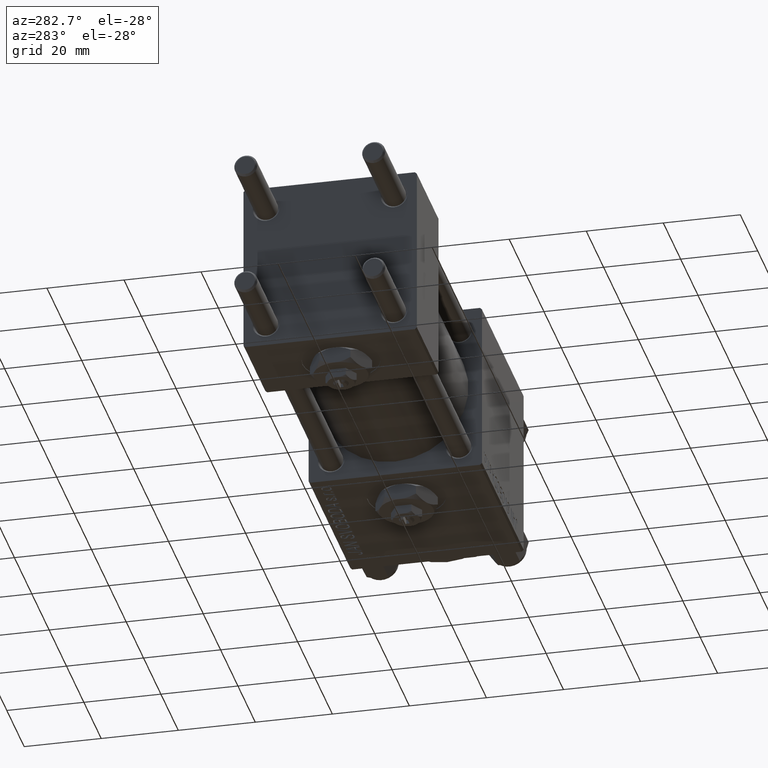
[diagram: clean part render]
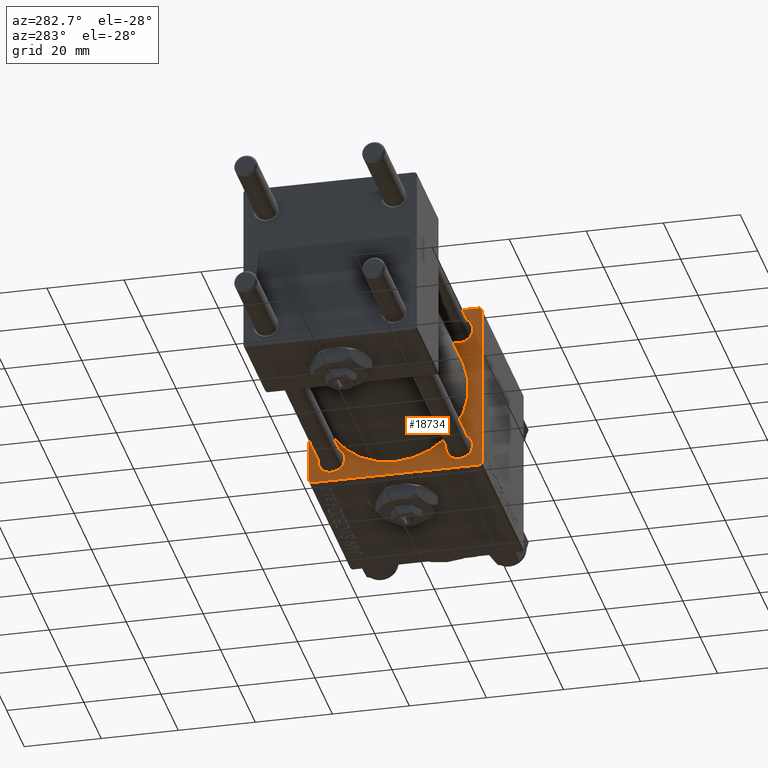
[diagram: same view with one face highlighted and labeled with its STEP entity id]
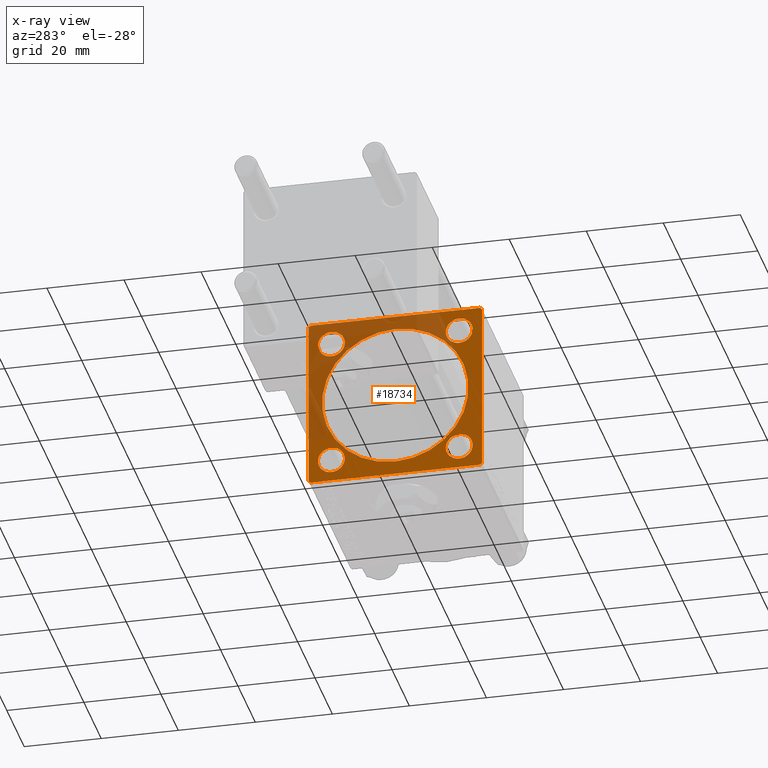
[diagram: x-ray of the same camera — body ghosted, the highlighted face saturated]
A machine part, auxiliary view. The second image highlights one B-rep face of the part: STEP entity #18734.
The next image is the same camera in x-ray: the body ghosted, the highlighted face saturated — about 40% of this face is hidden behind the body in this view.
In plain terms, the highlighted planar face has unit normal (-1, 0, 0).
Its self-contained STEP definition (entity closure, byte-faithful):
#71 = VERTEX_POINT ( 'NONE', #29011 ) ;
#168 = DIRECTION ( 'NONE',  ( 1.000000000000000000, -0.000000000000000000, 0.000000000000000000 ) ) ;
#236 = CARTESIAN_POINT ( 'NONE',  ( 75.00000000000001421, -21.99999999999998224, -22.50000000000000000 ) ) ;
#375 = CARTESIAN_POINT ( 'NONE',  ( 75.00000000000001421, -16.59999999999999076, -16.60000000000000853 ) ) ;
#728 = EDGE_CURVE ( 'NONE', #11742, #42389, #50954, .T. ) ;
#881 = DIRECTION ( 'NONE',  ( -0.000000000000000000, -0.7071067811865573427, -0.7071067811865378028 ) ) ;
#989 = AXIS2_PLACEMENT_3D ( 'NONE', #37547, #1488, #17546 ) ;
#1015 = EDGE_CURVE ( 'NONE', #15150, #28205, #36936, .T. ) ;
#1216 = ORIENTED_EDGE ( 'NONE', *, *, #1412, .T. ) ;
#1330 = CARTESIAN_POINT ( 'NONE',  ( 75.00000000000001421, 22.50000000000000355, 22.50000000000000355 ) ) ;
#1363 = CARTESIAN_POINT ( 'NONE',  ( 75.00000000000001421, 22.50000000000000355, -22.49999999999999645 ) ) ;
#1411 = VERTEX_POINT ( 'NONE', #24749 ) ;
#1412 = EDGE_CURVE ( 'NONE', #10929, #15150, #20812, .T. ) ;
#1488 = DIRECTION ( 'NONE',  ( 1.000000000000000000, -0.000000000000000000, 0.000000000000000000 ) ) ;
#2500 = FACE_BOUND ( 'NONE', #37151, .T. ) ;
#2888 = DIRECTION ( 'NONE',  ( 1.000000000000000000, -0.000000000000000000, 0.000000000000000000 ) ) ;
#2963 = DIRECTION ( 'NONE',  ( 1.000000000000000000, 0.000000000000000000, 0.000000000000000000 ) ) ;
#3192 = VECTOR ( 'NONE', #21524, 1000.000000000000000 ) ;
#3258 = DIRECTION ( 'NONE',  ( 1.000000000000000000, -0.000000000000000000, 0.000000000000000000 ) ) ;
#4026 = AXIS2_PLACEMENT_3D ( 'NONE', #38520, #2963, #30348 ) ;
#4302 = AXIS2_PLACEMENT_3D ( 'NONE', #375, #3258, #11676 ) ;
#4342 = LINE ( 'NONE', #32766, #48856 ) ;
#5226 = EDGE_CURVE ( 'NONE', #43988, #10929, #26252, .T. ) ;
#5308 = VECTOR ( 'NONE', #29471, 1000.000000000000000 ) ;
#6286 = CARTESIAN_POINT ( 'NONE',  ( 75.00000000000001421, 2.326828918379970970E-15, -19.00000000000000000 ) ) ;
#6453 = DIRECTION ( 'NONE',  ( -0.000000000000000000, 0.000000000000000000, 1.000000000000000000 ) ) ;
#6685 = ORIENTED_EDGE ( 'NONE', *, *, #43332, .T. ) ;
#6700 = CARTESIAN_POINT ( 'NONE',  ( 75.00000000000001421, 16.59999999999999787, 20.10000000000001918 ) ) ;
#7053 = VERTEX_POINT ( 'NONE', #20317 ) ;
#7239 = LINE ( 'NONE', #23269, #51776 ) ;
#8290 = DIRECTION ( 'NONE',  ( 0.000000000000000000, -0.7071067811865425767, 0.7071067811865525687 ) ) ;
#8377 = CARTESIAN_POINT ( 'NONE',  ( 75.00000000000001421, 0.000000000000000000, 19.00000000000000000 ) ) ;
#8564 = EDGE_CURVE ( 'NONE', #49235, #20398, #32494, .T. ) ;
#8977 = DIRECTION ( 'NONE',  ( 0.000000000000000000, 0.000000000000000000, -1.000000000000000000 ) ) ;
#9888 = CIRCLE ( 'NONE', #4026, 19.00000000000000000 ) ;
#9978 = DIRECTION ( 'NONE',  ( 1.000000000000000000, -0.000000000000000000, 0.000000000000000000 ) ) ;
#10160 = DIRECTION ( 'NONE',  ( 0.000000000000000000, 0.000000000000000000, -1.000000000000000000 ) ) ;
#10761 = CARTESIAN_POINT ( 'NONE',  ( 75.00000000000001421, 16.59999999999999787, -13.09999999999997300 ) ) ;
#10929 = VERTEX_POINT ( 'NONE', #12081 ) ;
#11676 = DIRECTION ( 'NONE',  ( 0.000000000000000000, 0.000000000000000000, 1.000000000000000000 ) ) ;
#11742 = VERTEX_POINT ( 'NONE', #43940 ) ;
#11996 = EDGE_CURVE ( 'NONE', #48050, #7053, #44194, .T. ) ;
#12081 = CARTESIAN_POINT ( 'NONE',  ( 75.00000000000001421, 22.50000000000000355, 21.99999999999997513 ) ) ;
#13043 = EDGE_CURVE ( 'NONE', #42769, #20398, #7239, .T. ) ;
#13663 = DIRECTION ( 'NONE',  ( 0.000000000000000000, 0.000000000000000000, 1.000000000000000000 ) ) ;
#13722 = LINE ( 'NONE', #1363, #51885 ) ;
#14724 = DIRECTION ( 'NONE',  ( 0.000000000000000000, 0.000000000000000000, 1.000000000000000000 ) ) ;
#14849 = FACE_BOUND ( 'NONE', #47316, .T. ) ;
#14940 = DIRECTION ( 'NONE',  ( 1.000000000000000000, 0.000000000000000000, 0.000000000000000000 ) ) ;
#15150 = VERTEX_POINT ( 'NONE', #32757 ) ;
#15247 = ORIENTED_EDGE ( 'NONE', *, *, #1015, .T. ) ;
#15385 = CARTESIAN_POINT ( 'NONE',  ( 75.00000000000001421, 21.99999999999996092, 22.50000000000000355 ) ) ;
#16104 = ORIENTED_EDGE ( 'NONE', *, *, #21074, .T. ) ;
#16244 = EDGE_CURVE ( 'NONE', #28205, #49235, #13722, .T. ) ;
#16820 = CARTESIAN_POINT ( 'NONE',  ( 75.00000000000001421, -22.49999999999999645, 22.00000000000000711 ) ) ;
#17546 = DIRECTION ( 'NONE',  ( 0.000000000000000000, 0.000000000000000000, 1.000000000000000000 ) ) ;
#17550 = ORIENTED_EDGE ( 'NONE', *, *, #8564, .T. ) ;
#18297 = DIRECTION ( 'NONE',  ( -1.000000000000000000, 0.000000000000000000, -0.000000000000000000 ) ) ;
#18734 = ADVANCED_FACE ( 'NONE', ( #27864, #2500, #41721, #45952, #14849, #30650 ), #38566, .T. ) ;
#19353 = CARTESIAN_POINT ( 'NONE',  ( 75.00000000000001421, 22.24999999999969802, -22.25000000000031619 ) ) ;
#19492 = AXIS2_PLACEMENT_3D ( 'NONE', #28044, #168, #36227 ) ;
#19516 = ORIENTED_EDGE ( 'NONE', *, *, #13043, .F. ) ;
#20317 = CARTESIAN_POINT ( 'NONE',  ( 75.00000000000001421, 16.59999999999999787, -20.10000000000003340 ) ) ;
#20354 = ORIENTED_EDGE ( 'NONE', *, *, #28395, .T. ) ;
#20398 = VERTEX_POINT ( 'NONE', #26265 ) ;
#20812 = LINE ( 'NONE', #32927, #29944 ) ;
#21074 = EDGE_CURVE ( 'NONE', #39800, #40895, #9888, .T. ) ;
#21524 = DIRECTION ( 'NONE',  ( 0.000000000000000000, 0.7071067811865573427, -0.7071067811865378028 ) ) ;
#21537 = AXIS2_PLACEMENT_3D ( 'NONE', #31529, #47599, #52055 ) ;
#21652 = ORIENTED_EDGE ( 'NONE', *, *, #11996, .T. ) ;
#22596 = ORIENTED_EDGE ( 'NONE', *, *, #728, .T. ) ;
#23269 = CARTESIAN_POINT ( 'NONE',  ( 75.00000000000001421, -22.49999999999999645, 22.49999999999999289 ) ) ;
#23343 = VERTEX_POINT ( 'NONE', #28918 ) ;
#23929 = CARTESIAN_POINT ( 'NONE',  ( 75.00000000000001421, -16.59999999999999076, 16.60000000000000853 ) ) ;
#24044 = VECTOR ( 'NONE', #881, 1000.000000000000000 ) ;
#24107 = AXIS2_PLACEMENT_3D ( 'NONE', #26186, #18297, #6453 ) ;
#24388 = EDGE_LOOP ( 'NONE', ( #33526, #44565 ) ) ;
#24749 = CARTESIAN_POINT ( 'NONE',  ( 75.00000000000001421, 16.59999999999999787, 13.09999999999998721 ) ) ;
#25278 = CIRCLE ( 'NONE', #31163, 3.500000000000016875 ) ;
#25811 = DIRECTION ( 'NONE',  ( 0.000000000000000000, -1.000000000000000000, -7.709882115452476934E-17 ) ) ;
#26186 = CARTESIAN_POINT ( 'NONE',  ( 75.00000000000001421, 0.000000000000000000, 0.000000000000000000 ) ) ;
#26252 = LINE ( 'NONE', #34430, #3192 ) ;
#26265 = CARTESIAN_POINT ( 'NONE',  ( 75.00000000000001421, -22.49999999999999645, -21.99999999999997868 ) ) ;
#27070 = AXIS2_PLACEMENT_3D ( 'NONE', #51048, #2888, #14724 ) ;
#27623 = EDGE_CURVE ( 'NONE', #40895, #39800, #34545, .T. ) ;
#27735 = DIRECTION ( 'NONE',  ( -0.000000000000000000, 0.7071067811865573427, 0.7071067811865378028 ) ) ;
#27864 = FACE_BOUND ( 'NONE', #24388, .T. ) ;
#28044 = CARTESIAN_POINT ( 'NONE',  ( 75.00000000000001421, 16.59999999999999787, -16.60000000000000497 ) ) ;
#28205 = VERTEX_POINT ( 'NONE', #49473 ) ;
#28395 = EDGE_CURVE ( 'NONE', #1411, #38036, #25278, .T. ) ;
#28744 = CIRCLE ( 'NONE', #19492, 3.500000000000031086 ) ;
#28918 = CARTESIAN_POINT ( 'NONE',  ( 75.00000000000001421, -16.59999999999999076, 20.10000000000002274 ) ) ;
#29011 = CARTESIAN_POINT ( 'NONE',  ( 75.00000000000001421, -16.59999999999999076, 13.09999999999999076 ) ) ;
#29110 = DIRECTION ( 'NONE',  ( 1.000000000000000000, -0.000000000000000000, 0.000000000000000000 ) ) ;
#29471 = DIRECTION ( 'NONE',  ( 0.000000000000000000, -1.000000000000000000, -2.312964634635742957E-16 ) ) ;
#29484 = CIRCLE ( 'NONE', #4302, 3.500000000000031086 ) ;
#29944 = VECTOR ( 'NONE', #8977, 1000.000000000000000 ) ;
#30348 = DIRECTION ( 'NONE',  ( 0.000000000000000000, 0.000000000000000000, -1.000000000000000000 ) ) ;
#30650 = FACE_OUTER_BOUND ( 'NONE', #41110, .T. ) ;
#31163 = AXIS2_PLACEMENT_3D ( 'NONE', #49731, #9978, #13663 ) ;
#31529 = CARTESIAN_POINT ( 'NONE',  ( 75.00000000000001421, -16.59999999999999076, -16.60000000000000853 ) ) ;
#31849 = EDGE_CURVE ( 'NONE', #23343, #71, #49668, .T. ) ;
#32494 = LINE ( 'NONE', #44603, #46913 ) ;
#32757 = CARTESIAN_POINT ( 'NONE',  ( 75.00000000000001421, 22.50000000000000355, -21.99999999999999645 ) ) ;
#32766 = CARTESIAN_POINT ( 'NONE',  ( 75.00000000000001421, -22.24999999999969447, 22.25000000000030909 ) ) ;
#32822 = CARTESIAN_POINT ( 'NONE',  ( 75.00000000000001421, 16.59999999999999787, -16.60000000000000497 ) ) ;
#32927 = CARTESIAN_POINT ( 'NONE',  ( 75.00000000000001421, 22.50000000000000355, 22.50000000000000355 ) ) ;
#32994 = EDGE_CURVE ( 'NONE', #42769, #47737, #4342, .T. ) ;
#33526 = ORIENTED_EDGE ( 'NONE', *, *, #31849, .T. ) ;
#33864 = EDGE_CURVE ( 'NONE', #38036, #1411, #41328, .T. ) ;
#34097 = AXIS2_PLACEMENT_3D ( 'NONE', #32822, #29110, #49907 ) ;
#34430 = CARTESIAN_POINT ( 'NONE',  ( 75.00000000000001421, 22.24999999999968026, 22.25000000000029488 ) ) ;
#34545 = CIRCLE ( 'NONE', #36232, 19.00000000000000000 ) ;
#35256 = AXIS2_PLACEMENT_3D ( 'NONE', #23929, #36585, #51837 ) ;
#36227 = DIRECTION ( 'NONE',  ( 0.000000000000000000, 0.000000000000000000, 1.000000000000000000 ) ) ;
#36232 = AXIS2_PLACEMENT_3D ( 'NONE', #43891, #14940, #47850 ) ;
#36585 = DIRECTION ( 'NONE',  ( 1.000000000000000000, -0.000000000000000000, 0.000000000000000000 ) ) ;
#36665 = ORIENTED_EDGE ( 'NONE', *, *, #27623, .T. ) ;
#36936 = LINE ( 'NONE', #19353, #24044 ) ;
#37093 = EDGE_CURVE ( 'NONE', #43988, #47737, #48733, .T. ) ;
#37151 = EDGE_LOOP ( 'NONE', ( #42232, #20354 ) ) ;
#37423 = ORIENTED_EDGE ( 'NONE', *, *, #32994, .T. ) ;
#37547 = CARTESIAN_POINT ( 'NONE',  ( 75.00000000000001421, 16.59999999999999787, 16.60000000000000497 ) ) ;
#38036 = VERTEX_POINT ( 'NONE', #6700 ) ;
#38038 = CARTESIAN_POINT ( 'NONE',  ( 75.00000000000001421, -16.59999999999999076, -20.10000000000003695 ) ) ;
#38433 = ORIENTED_EDGE ( 'NONE', *, *, #37093, .F. ) ;
#38520 = CARTESIAN_POINT ( 'NONE',  ( 75.00000000000001421, 0.000000000000000000, 0.000000000000000000 ) ) ;
#38566 = PLANE ( 'NONE',  #24107 ) ;
#39238 = CARTESIAN_POINT ( 'NONE',  ( 75.00000000000001421, -21.99999999999998224, 22.49999999999999289 ) ) ;
#39517 = EDGE_CURVE ( 'NONE', #71, #23343, #43653, .T. ) ;
#39800 = VERTEX_POINT ( 'NONE', #6286 ) ;
#40045 = ORIENTED_EDGE ( 'NONE', *, *, #5226, .T. ) ;
#40567 = ORIENTED_EDGE ( 'NONE', *, *, #49420, .T. ) ;
#40895 = VERTEX_POINT ( 'NONE', #8377 ) ;
#41110 = EDGE_LOOP ( 'NONE', ( #43612, #17550, #19516, #37423, #38433, #40045, #1216, #15247 ) ) ;
#41328 = CIRCLE ( 'NONE', #989, 3.500000000000016875 ) ;
#41721 = FACE_BOUND ( 'NONE', #46495, .T. ) ;
#42232 = ORIENTED_EDGE ( 'NONE', *, *, #33864, .T. ) ;
#42389 = VERTEX_POINT ( 'NONE', #38038 ) ;
#42769 = VERTEX_POINT ( 'NONE', #16820 ) ;
#43332 = EDGE_CURVE ( 'NONE', #42389, #11742, #29484, .T. ) ;
#43612 = ORIENTED_EDGE ( 'NONE', *, *, #16244, .T. ) ;
#43653 = CIRCLE ( 'NONE', #35256, 3.500000000000016875 ) ;
#43891 = CARTESIAN_POINT ( 'NONE',  ( 75.00000000000001421, 0.000000000000000000, 0.000000000000000000 ) ) ;
#43940 = CARTESIAN_POINT ( 'NONE',  ( 75.00000000000001421, -16.59999999999999076, -13.09999999999997655 ) ) ;
#43988 = VERTEX_POINT ( 'NONE', #15385 ) ;
#44194 = CIRCLE ( 'NONE', #34097, 3.500000000000031086 ) ;
#44565 = ORIENTED_EDGE ( 'NONE', *, *, #39517, .T. ) ;
#44603 = CARTESIAN_POINT ( 'NONE',  ( 75.00000000000001421, -22.25000000000015277, -22.24999999999984013 ) ) ;
#45952 = FACE_BOUND ( 'NONE', #51733, .T. ) ;
#46495 = EDGE_LOOP ( 'NONE', ( #21652, #40567 ) ) ;
#46913 = VECTOR ( 'NONE', #8290, 999.9999999999998863 ) ;
#47316 = EDGE_LOOP ( 'NONE', ( #36665, #16104 ) ) ;
#47599 = DIRECTION ( 'NONE',  ( 1.000000000000000000, -0.000000000000000000, 0.000000000000000000 ) ) ;
#47737 = VERTEX_POINT ( 'NONE', #39238 ) ;
#47850 = DIRECTION ( 'NONE',  ( 0.000000000000000000, 0.000000000000000000, -1.000000000000000000 ) ) ;
#48050 = VERTEX_POINT ( 'NONE', #10761 ) ;
#48733 = LINE ( 'NONE', #1330, #5308 ) ;
#48856 = VECTOR ( 'NONE', #27735, 1000.000000000000000 ) ;
#49235 = VERTEX_POINT ( 'NONE', #236 ) ;
#49420 = EDGE_CURVE ( 'NONE', #7053, #48050, #28744, .T. ) ;
#49473 = CARTESIAN_POINT ( 'NONE',  ( 75.00000000000001421, 22.00000000000000355, -22.49999999999999645 ) ) ;
#49668 = CIRCLE ( 'NONE', #27070, 3.500000000000016875 ) ;
#49731 = CARTESIAN_POINT ( 'NONE',  ( 75.00000000000001421, 16.59999999999999787, 16.60000000000000497 ) ) ;
#49907 = DIRECTION ( 'NONE',  ( 0.000000000000000000, 0.000000000000000000, 1.000000000000000000 ) ) ;
#50954 = CIRCLE ( 'NONE', #21537, 3.500000000000031086 ) ;
#51048 = CARTESIAN_POINT ( 'NONE',  ( 75.00000000000001421, -16.59999999999999076, 16.60000000000000853 ) ) ;
#51733 = EDGE_LOOP ( 'NONE', ( #22596, #6685 ) ) ;
#51776 = VECTOR ( 'NONE', #10160, 1000.000000000000000 ) ;
#51837 = DIRECTION ( 'NONE',  ( 0.000000000000000000, 0.000000000000000000, 1.000000000000000000 ) ) ;
#51885 = VECTOR ( 'NONE', #25811, 1000.000000000000000 ) ;
#52055 = DIRECTION ( 'NONE',  ( 0.000000000000000000, 0.000000000000000000, 1.000000000000000000 ) ) ;